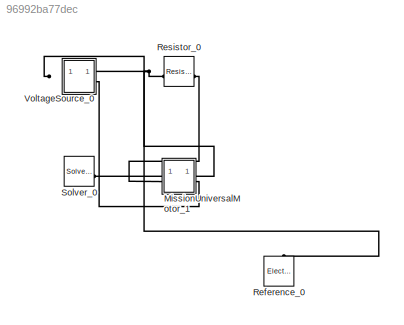
MODEL slx_96992ba77dec
KIND model
CONFIG AbsTol = auto
CONFIG EnableMultiTasking = off
CONFIG FixedStep = auto
CONFIG MaxStep = auto
CONFIG MinStep = auto
CONFIG RelTol = 1e-3
CONFIG SampleTimeConstraint = Unconstrained
CONFIG SolverName = ode23t
CONFIG StartTime = 0.0
CONFIG StopTime = 100
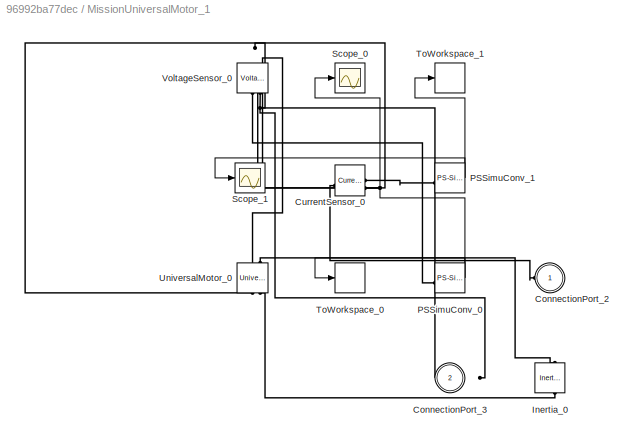
BLOCK [SubSystem] MissionUniversalMotor_1
BLOCK [PMIOPort] MissionUniversalMotor_1/ConnectionPort_2
  Side = Left
BLOCK [PMIOPort] MissionUniversalMotor_1/ConnectionPort_3
  Port = 2
  Side = Right
BLOCK [Reference] MissionUniversalMotor_1/CurrentSensor_0  REF=fl_lib/Electrical/Electrical Sensors/Current Sensor
  LibrarySourceBlock = ee_lib/Sensors &\nTransducers/Current Sensor
  SourceBlock = fl_lib/Electrical/Electrical Sensors/Current Sensor
  SourceType = Current Sensor
BLOCK [Reference] MissionUniversalMotor_1/Inertia_0  REF=fl_lib/Mechanical/Rotational Elements/Inertia
  NameLocation = right
  SourceBlock = fl_lib/Mechanical/Rotational Elements/Inertia
  SourceType = Inertia
BLOCK [Reference] MissionUniversalMotor_1/PSSimuConv_0  REF=nesl_utility/PS-Simulink
Converter
  SourceBlock = nesl_utility/PS-Simulink\nConverter
  SourceType = PS-Simulink\nConverter
BLOCK [Reference] MissionUniversalMotor_1/PSSimuConv_1  REF=nesl_utility/PS-Simulink
Converter
  SourceBlock = nesl_utility/PS-Simulink\nConverter
  SourceType = PS-Simulink\nConverter
BLOCK [Scope] MissionUniversalMotor_1/Scope_0
  Floating = off
  NumInputPorts = 1
BLOCK [Scope] MissionUniversalMotor_1/Scope_1
  Floating = off
  NumInputPorts = 1
BLOCK [ToWorkspace] MissionUniversalMotor_1/ToWorkspace_0
  FixptAsFi = on
  MaxDataPoints = inf
  SampleTime = -1
  SaveFormat = Structure With Time
  VariableName = MissionUniversalMotor_0_simout_0
BLOCK [ToWorkspace] MissionUniversalMotor_1/ToWorkspace_1
  FixptAsFi = on
  MaxDataPoints = inf
  SampleTime = -1
  SaveFormat = Structure With Time
  VariableName = MissionUniversalMotor_0_simout_1
BLOCK [Reference] MissionUniversalMotor_1/UniversalMotor_0  REF=ee_lib/Electromechanical/Brushed Motors/Universal Motor
  NameLocation = right
  SourceBlock = ee_lib/Electromechanical/Brushed Motors/Universal Motor
  SourceType = Universal Motor
BLOCK [Reference] MissionUniversalMotor_1/VoltageSensor_0  REF=fl_lib/Electrical/Electrical Sensors/Voltage Sensor
  LibrarySourceBlock = ee_lib/Sensors &\nTransducers/Voltage Sensor
  NameLocation = right
  SourceBlock = fl_lib/Electrical/Electrical Sensors/Voltage Sensor
  SourceType = Voltage Sensor
BLOCK [Reference] Reference_0  REF=fl_lib/Electrical/Electrical Elements/Electrical Reference
  LibrarySourceBlock = ee_lib/Connectors &\nReferences/Electrical Reference
  NameLocation = right
  SourceBlock = fl_lib/Electrical/Electrical Elements/Electrical Reference
  SourceType = Electrical Reference
BLOCK [Reference] Resistor_0  REF=ee_lib/Passive/Resistor
  SourceBlock = ee_lib/Passive/Resistor
  SourceType = Resistor
BLOCK [Reference] Solver_0  REF=nesl_utility/Solver
Configuration
  SourceBlock = nesl_utility/Solver\nConfiguration
  SourceType = Solver\nConfiguration
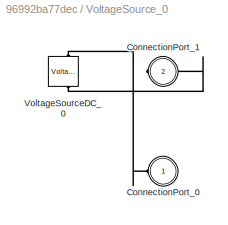
BLOCK [SubSystem] VoltageSource_0
BLOCK [PMIOPort] VoltageSource_0/ConnectionPort_0
  Side = Left
BLOCK [PMIOPort] VoltageSource_0/ConnectionPort_1
  Port = 2
  Side = Right
BLOCK [Reference] VoltageSource_0/VoltageSourceDC_0  REF=ee_lib/Sources/Voltage Source
  NameLocation = right
  SourceBlock = ee_lib/Sources/Voltage Source
  SourceType = Voltage Source
NET MissionUniversalMotor_1/PSSimuConv_0:1 -> MissionUniversalMotor_1/Scope_0:1, MissionUniversalMotor_1/ToWorkspace_0:1
NET MissionUniversalMotor_1/PSSimuConv_1:1 -> MissionUniversalMotor_1/Scope_1:1, MissionUniversalMotor_1/ToWorkspace_1:1
PLINE MissionUniversalMotor_1/ConnectionPort_2:RConn1 -- MissionUniversalMotor_1/CurrentSensor_0:LConn1
PNET net1: MissionUniversalMotor_1/ConnectionPort_3:RConn1 -- MissionUniversalMotor_1/UniversalMotor_0:RConn1 -- MissionUniversalMotor_1/VoltageSensor_0:RConn2
PLINE MissionUniversalMotor_1/CurrentSensor_0:RConn1 -- MissionUniversalMotor_1/PSSimuConv_1:LConn1
PNET net2: MissionUniversalMotor_1/CurrentSensor_0:RConn2 -- MissionUniversalMotor_1/UniversalMotor_0:LConn1 -- MissionUniversalMotor_1/VoltageSensor_0:LConn1
PLINE MissionUniversalMotor_1/Inertia_0:LConn1 -- MissionUniversalMotor_1/UniversalMotor_0:LConn2
PLINE MissionUniversalMotor_1/Inertia_0:RConn1 -- MissionUniversalMotor_1/UniversalMotor_0:RConn2
PLINE MissionUniversalMotor_1/PSSimuConv_0:LConn1 -- MissionUniversalMotor_1/VoltageSensor_0:RConn1
PLINE MissionUniversalMotor_1:LConn1 -- Resistor_0:RConn1
PLINE MissionUniversalMotor_1:RConn1 -- VoltageSource_0:RConn1
PNET net3: Reference_0:LConn1 -- Resistor_0:LConn1 -- Solver_0:RConn1 -- VoltageSource_0:LConn1
PLINE VoltageSource_0/ConnectionPort_0:RConn1 -- VoltageSource_0/VoltageSourceDC_0:LConn1
PLINE VoltageSource_0/ConnectionPort_1:RConn1 -- VoltageSource_0/VoltageSourceDC_0:RConn1
note: NET lines group one-source signal fan-out (src -> all destinations, sorted); 1:1 wires keep LINE; PNET lines group multi-terminal physical nets as a canonical sorted terminal list (undirected conserving connections); 2-terminal nets keep the pairwise PLINE form
